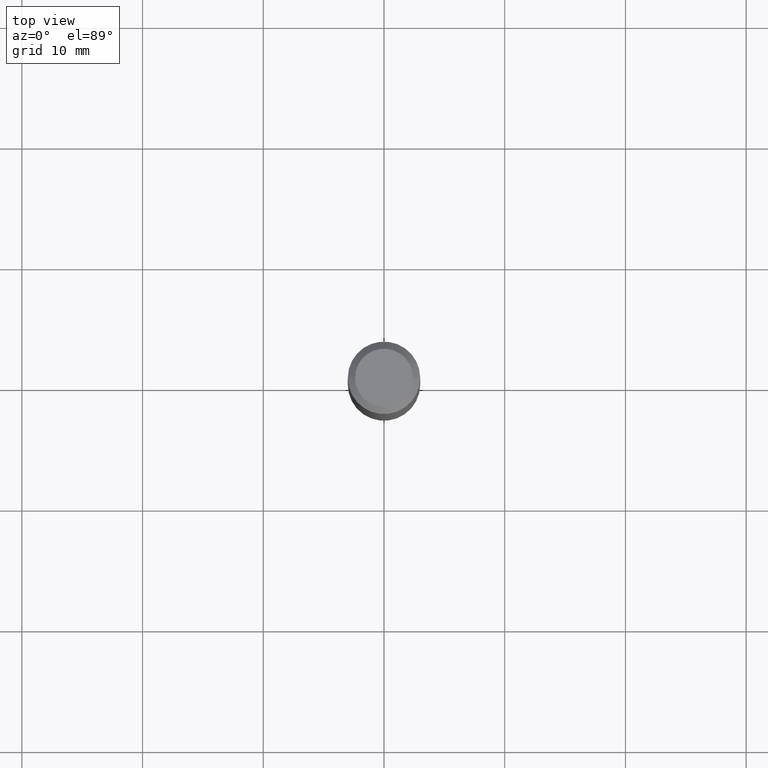
[diagram: clean part render]
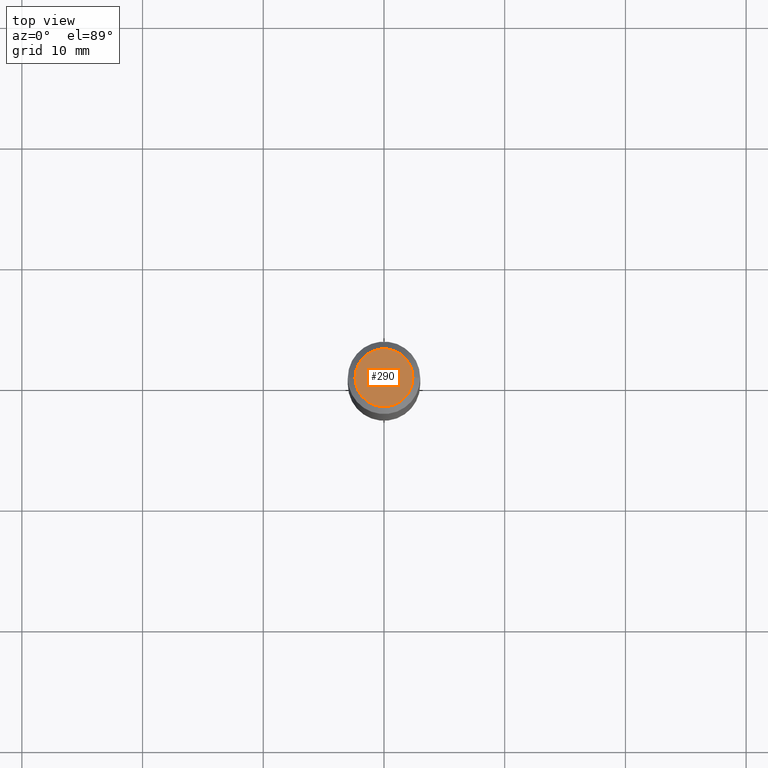
[diagram: same view with one face highlighted and labeled with its STEP entity id]
A machine part, top view. The second image highlights one B-rep face of the part: STEP entity #290.
In plain terms, the highlighted planar face has unit normal (0, -0, -1).
Its self-contained STEP definition (entity closure, byte-faithful):
#17 = AXIS2_PLACEMENT_3D ( 'NONE', #64, #294, #429 ) ;
#30 = AXIS2_PLACEMENT_3D ( 'NONE', #383, #188, #300 ) ;
#40 = VERTEX_POINT ( 'NONE', #242 ) ;
#61 = CARTESIAN_POINT ( 'NONE',  ( 0.09447999999999998066, -7.704367267948738690E-16, -3.085620075131172158E-17 ) ) ;
#64 = CARTESIAN_POINT ( 'NONE',  ( 7.545787641473140628E-46, -1.077338491108201769E-31, -3.085620075131671975E-17 ) ) ;
#79 = FACE_OUTER_BOUND ( 'NONE', #516, .T. ) ;
#85 = ORIENTED_EDGE ( 'NONE', *, *, #164, .T. ) ;
#143 = ORIENTED_EDGE ( 'NONE', *, *, #192, .T. ) ;
#159 = CARTESIAN_POINT ( 'NONE',  ( 3.772893820736570314E-46, -5.386692455541008845E-32, -1.542810037565835988E-17 ) ) ;
#164 = EDGE_CURVE ( 'NONE', #474, #40, #318, .T. ) ;
#188 = DIRECTION ( 'NONE',  ( -2.445468806185136597E-29, 3.491481338843145583E-15, 1.000000000000000000 ) ) ;
#192 = EDGE_CURVE ( 'NONE', #40, #474, #226, .T. ) ;
#226 = CIRCLE ( 'NONE', #17, 0.09447999999999998066 ) ;
#242 = CARTESIAN_POINT ( 'NONE',  ( -0.09447999999999998066, 7.009847083995354710E-16, -3.085620075132147757E-17 ) ) ;
#264 = DIRECTION ( 'NONE',  ( 2.438088387897960049E-29, -3.491481338843145188E-15, -1.000000000000000000 ) ) ;
#290 = ADVANCED_FACE ( 'NONE', ( #79 ), #314, .F. ) ;
#294 = DIRECTION ( 'NONE',  ( -2.445468806185136597E-29, 3.491481338843145583E-15, 1.000000000000000000 ) ) ;
#300 = DIRECTION ( 'NONE',  ( 1.000000000000000000, -6.982962677686267499E-15, 4.875432709231658792E-29 ) ) ;
#314 = PLANE ( 'NONE',  #394 ) ;
#318 = CIRCLE ( 'NONE', #30, 0.09447999999999998066 ) ;
#319 = DIRECTION ( 'NONE',  ( -1.000000000000000000, 6.982962677686265922E-15, -4.876176775795935793E-29 ) ) ;
#383 = CARTESIAN_POINT ( 'NONE',  ( 7.545787641473140628E-46, -1.077338491108201769E-31, -3.085620075131671975E-17 ) ) ;
#394 = AXIS2_PLACEMENT_3D ( 'NONE', #159, #264, #319 ) ;
#429 = DIRECTION ( 'NONE',  ( 1.000000000000000000, -6.982962677686267499E-15, 4.875432709231658792E-29 ) ) ;
#474 = VERTEX_POINT ( 'NONE', #61 ) ;
#516 = EDGE_LOOP ( 'NONE', ( #143, #85 ) ) ;